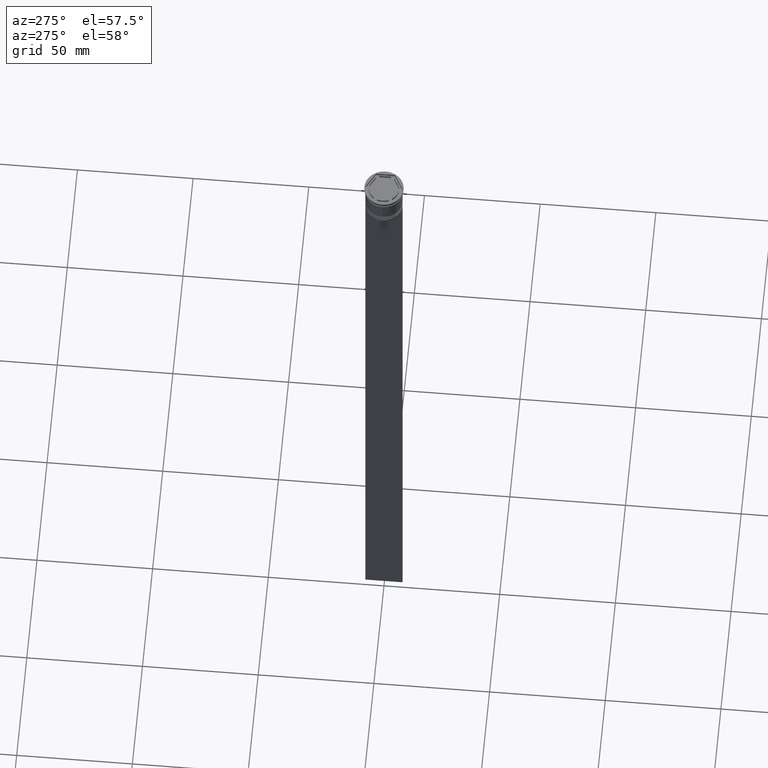
[diagram: clean part render]
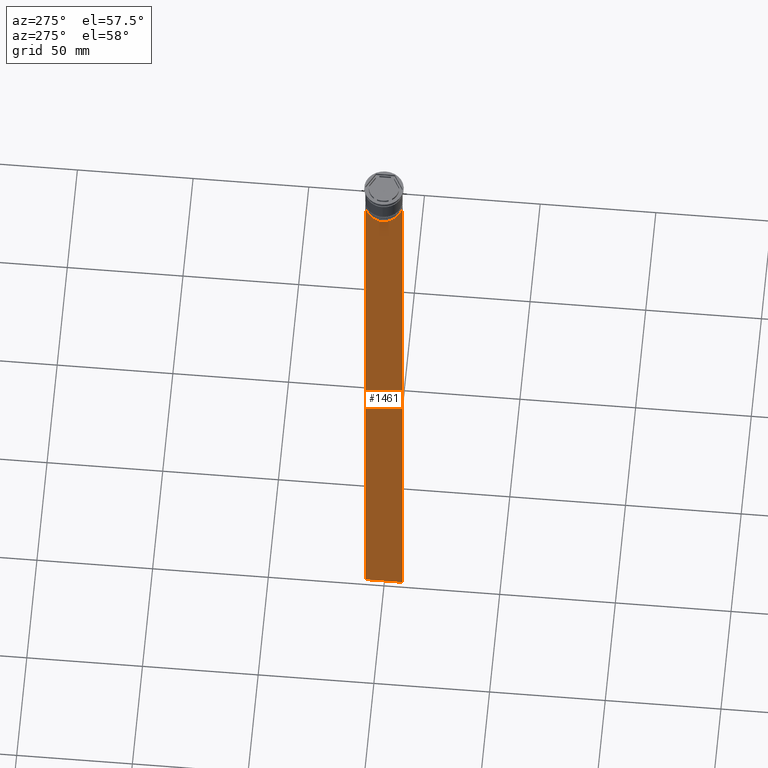
[diagram: same view with one face highlighted and labeled with its STEP entity id]
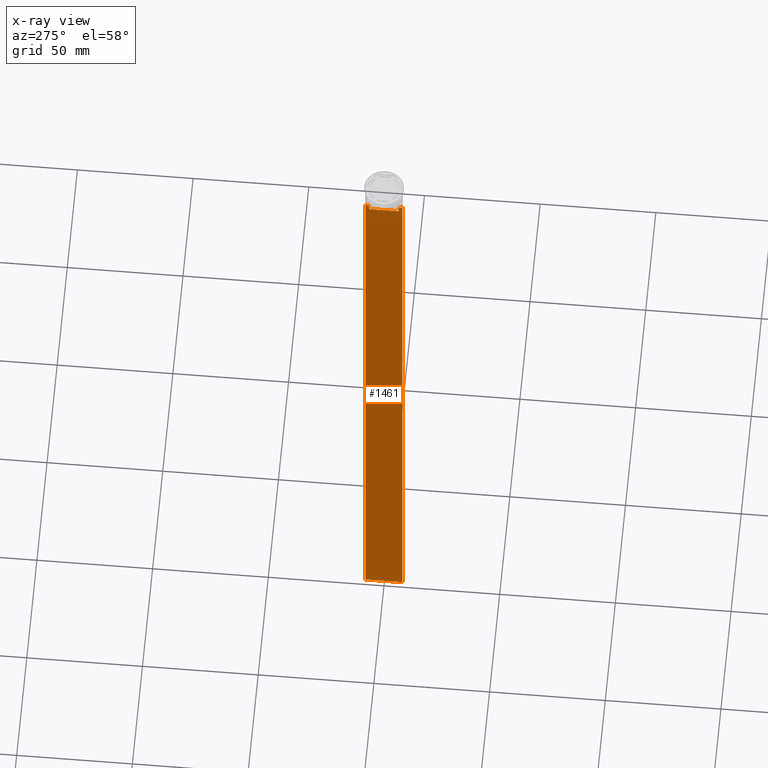
[diagram: x-ray of the same camera — body ghosted, the highlighted face saturated]
A machine part, auxiliary view. The second image highlights one B-rep face of the part: STEP entity #1461.
The next image is the same camera in x-ray: the body ghosted, the highlighted face saturated — about 0% of this face is hidden behind the body in this view.
In plain terms, the highlighted planar face has unit normal (-1, 0, 0).
Its self-contained STEP definition (entity closure, byte-faithful):
#46 = CARTESIAN_POINT ( 'NONE',  ( -0.4999999999999998890, -6.380438856379708312, -14.50000000000000000 ) ) ;
#51 = DIRECTION ( 'NONE',  ( 0.000000000000000000, -1.000000000000000000, 0.000000000000000000 ) ) ;
#116 = CARTESIAN_POINT ( 'NONE',  ( -0.4999999999999998890, 7.999999999999996447, -314.0000000000000000 ) ) ;
#203 = CARTESIAN_POINT ( 'NONE',  ( -0.4999999999999998890, -8.000000000000003553, -314.0000000000000000 ) ) ;
#204 = EDGE_CURVE ( 'NONE', #450, #532, #1127, .T. ) ;
#255 = CARTESIAN_POINT ( 'NONE',  ( -0.4999999999999998890, 6.380438856379708312, -17.00000000000000000 ) ) ;
#276 = CARTESIAN_POINT ( 'NONE',  ( -0.4999999999999998890, 6.380438856379708312, -14.50000000000000000 ) ) ;
#290 = VERTEX_POINT ( 'NONE', #1855 ) ;
#300 = AXIS2_PLACEMENT_3D ( 'NONE', #2396, #444, #2234 ) ;
#322 = LINE ( 'NONE', #1839, #2473 ) ;
#329 = B_SPLINE_CURVE_WITH_KNOTS ( 'NONE', 3,
 ( #1794, #1990, #1437, #276 ),
 .UNSPECIFIED., .F., .F.,
 ( 4, 4 ),
 ( 0.01172465562756038263, 0.01243276816391822651 ),
 .UNSPECIFIED. ) ;
#343 = EDGE_CURVE ( 'NONE', #290, #548, #2342, .T. ) ;
#361 = EDGE_CURVE ( 'NONE', #465, #1235, #1840, .T. ) ;
#375 = CARTESIAN_POINT ( 'NONE',  ( -0.4999999999999998890, -6.380438856379708312, -14.50000000000000000 ) ) ;
#388 = LINE ( 'NONE', #1943, #389 ) ;
#389 = VECTOR ( 'NONE', #2335, 1000.000000000000000 ) ;
#412 = CARTESIAN_POINT ( 'NONE',  ( -0.4999999999999998890, -8.000000000000003553, -314.0000000000000000 ) ) ;
#444 = DIRECTION ( 'NONE',  ( -1.000000000000000000, 0.000000000000000000, 0.000000000000000000 ) ) ;
#450 = VERTEX_POINT ( 'NONE', #2487 ) ;
#465 = VERTEX_POINT ( 'NONE', #813 ) ;
#492 = ORIENTED_EDGE ( 'NONE', *, *, #1773, .F. ) ;
#532 = VERTEX_POINT ( 'NONE', #46 ) ;
#538 = ORIENTED_EDGE ( 'NONE', *, *, #2152, .T. ) ;
#548 = VERTEX_POINT ( 'NONE', #1558 ) ;
#563 = LINE ( 'NONE', #1915, #696 ) ;
#638 = PLANE ( 'NONE',  #300 ) ;
#645 = DIRECTION ( 'NONE',  ( 0.000000000000000000, 0.000000000000000000, -1.000000000000000000 ) ) ;
#667 = ORIENTED_EDGE ( 'NONE', *, *, #343, .F. ) ;
#696 = VECTOR ( 'NONE', #2481, 1000.000000000000000 ) ;
#705 = ORIENTED_EDGE ( 'NONE', *, *, #1254, .F. ) ;
#708 = DIRECTION ( 'NONE',  ( 0.000000000000000000, -1.000000000000000000, 0.000000000000000000 ) ) ;
#739 = CARTESIAN_POINT ( 'NONE',  ( -0.4999999999999998890, -6.881860213634098500, -14.00000000000000178 ) ) ;
#808 = ORIENTED_EDGE ( 'NONE', *, *, #1212, .F. ) ;
#813 = CARTESIAN_POINT ( 'NONE',  ( -0.4999999999999998890, 7.999999999999996447, -14.00000000000000178 ) ) ;
#847 = LINE ( 'NONE', #1987, #1755 ) ;
#850 = CARTESIAN_POINT ( 'NONE',  ( -0.4999999999999998890, -8.000000000000003553, -14.00000000000000178 ) ) ;
#853 = VERTEX_POINT ( 'NONE', #412 ) ;
#865 = VECTOR ( 'NONE', #1546, 1000.000000000000000 ) ;
#915 = VERTEX_POINT ( 'NONE', #980 ) ;
#931 = CARTESIAN_POINT ( 'NONE',  ( -0.4999999999999998890, 7.999999999999996447, 2.031219541881394530 ) ) ;
#980 = CARTESIAN_POINT ( 'NONE',  ( -0.4999999999999998890, 6.881860213634098500, -14.00000000000000178 ) ) ;
#1011 = ORIENTED_EDGE ( 'NONE', *, *, #1531, .F. ) ;
#1127 = LINE ( 'NONE', #1542, #1711 ) ;
#1160 = LINE ( 'NONE', #931, #865 ) ;
#1166 = VERTEX_POINT ( 'NONE', #116 ) ;
#1196 = DIRECTION ( 'NONE',  ( 0.000000000000000000, 1.000000000000000000, 0.000000000000000000 ) ) ;
#1204 = DIRECTION ( 'NONE',  ( 0.000000000000000000, 0.000000000000000000, -1.000000000000000000 ) ) ;
#1205 = ORIENTED_EDGE ( 'NONE', *, *, #2206, .F. ) ;
#1212 = EDGE_CURVE ( 'NONE', #1405, #450, #388, .T. ) ;
#1223 = VECTOR ( 'NONE', #2433, 1000.000000000000000 ) ;
#1235 = VERTEX_POINT ( 'NONE', #2136 ) ;
#1254 = EDGE_CURVE ( 'NONE', #853, #1166, #1732, .T. ) ;
#1278 = VERTEX_POINT ( 'NONE', #1385 ) ;
#1346 = ORIENTED_EDGE ( 'NONE', *, *, #1791, .F. ) ;
#1359 = VECTOR ( 'NONE', #1196, 1000.000000000000000 ) ;
#1385 = CARTESIAN_POINT ( 'NONE',  ( -0.4999999999999998890, -8.000000000000003553, -14.00000000000000178 ) ) ;
#1405 = VERTEX_POINT ( 'NONE', #255 ) ;
#1413 = ORIENTED_EDGE ( 'NONE', *, *, #204, .F. ) ;
#1437 = CARTESIAN_POINT ( 'NONE',  ( -0.4999999999999998890, 6.547597841304911626, -14.33335192459222718 ) ) ;
#1448 = EDGE_CURVE ( 'NONE', #915, #2125, #329, .T. ) ;
#1461 = ADVANCED_FACE ( 'NONE', ( #1635 ), #638, .T. ) ;
#1531 = EDGE_CURVE ( 'NONE', #548, #1278, #322, .T. ) ;
#1542 = CARTESIAN_POINT ( 'NONE',  ( -0.4999999999999998890, -6.380438856379708312, 0.000000000000000000 ) ) ;
#1546 = DIRECTION ( 'NONE',  ( 0.000000000000000000, 0.000000000000000000, -1.000000000000000000 ) ) ;
#1558 = CARTESIAN_POINT ( 'NONE',  ( -0.4999999999999998890, -7.884161337770806632, -14.00000000000000178 ) ) ;
#1577 = B_SPLINE_CURVE_WITH_KNOTS ( 'NONE', 3,
 ( #375, #1723, #2458, #739 ),
 .UNSPECIFIED., .F., .F.,
 ( 4, 4 ),
 ( 0.02996184199614749730, 0.03067452609193703841 ),
 .UNSPECIFIED. ) ;
#1608 = CARTESIAN_POINT ( 'NONE',  ( -0.4999999999999998890, -8.000000000000003553, 2.031219541881394530 ) ) ;
#1635 = FACE_OUTER_BOUND ( 'NONE', #2291, .T. ) ;
#1665 = VECTOR ( 'NONE', #51, 1000.000000000000000 ) ;
#1686 = ORIENTED_EDGE ( 'NONE', *, *, #1448, .F. ) ;
#1711 = VECTOR ( 'NONE', #2295, 1000.000000000000000 ) ;
#1723 = CARTESIAN_POINT ( 'NONE',  ( -0.4999999999999998890, -6.547597841511246131, -14.33335192438652328 ) ) ;
#1732 = LINE ( 'NONE', #203, #1359 ) ;
#1737 = ORIENTED_EDGE ( 'NONE', *, *, #1825, .F. ) ;
#1755 = VECTOR ( 'NONE', #645, 1000.000000000000000 ) ;
#1773 = EDGE_CURVE ( 'NONE', #1235, #915, #563, .T. ) ;
#1790 = CARTESIAN_POINT ( 'NONE',  ( -0.4999999999999998890, -8.000000000000003553, -14.00000000000000178 ) ) ;
#1791 = EDGE_CURVE ( 'NONE', #1278, #853, #2358, .T. ) ;
#1794 = CARTESIAN_POINT ( 'NONE',  ( -0.4999999999999998890, 6.881860213634098500, -14.00000000000000178 ) ) ;
#1825 = EDGE_CURVE ( 'NONE', #2125, #1405, #847, .T. ) ;
#1839 = CARTESIAN_POINT ( 'NONE',  ( -0.4999999999999998890, -8.000000000000003553, -14.00000000000000178 ) ) ;
#1840 = LINE ( 'NONE', #850, #1223 ) ;
#1855 = CARTESIAN_POINT ( 'NONE',  ( -0.4999999999999998890, -6.881860213634098500, -14.00000000000000178 ) ) ;
#1915 = CARTESIAN_POINT ( 'NONE',  ( -0.4999999999999998890, -8.000000000000003553, -14.00000000000000178 ) ) ;
#1943 = CARTESIAN_POINT ( 'NONE',  ( -0.4999999999999998890, 6.399999999999999467, -17.00000000000000000 ) ) ;
#1987 = CARTESIAN_POINT ( 'NONE',  ( -0.4999999999999998890, 6.380438856379708312, 0.000000000000000000 ) ) ;
#1990 = CARTESIAN_POINT ( 'NONE',  ( -0.4999999999999998890, 6.714736947114692711, -14.16668390704818847 ) ) ;
#2089 = CARTESIAN_POINT ( 'NONE',  ( -0.4999999999999998890, 6.380438856379708312, -14.50000000000000000 ) ) ;
#2122 = ORIENTED_EDGE ( 'NONE', *, *, #361, .F. ) ;
#2125 = VERTEX_POINT ( 'NONE', #2089 ) ;
#2136 = CARTESIAN_POINT ( 'NONE',  ( -0.4999999999999998890, 7.884161337770806632, -14.00000000000000178 ) ) ;
#2152 = EDGE_CURVE ( 'NONE', #465, #1166, #1160, .T. ) ;
#2206 = EDGE_CURVE ( 'NONE', #532, #290, #1577, .T. ) ;
#2234 = DIRECTION ( 'NONE',  ( 0.000000000000000000, 0.000000000000000000, 1.000000000000000000 ) ) ;
#2291 = EDGE_LOOP ( 'NONE', ( #1686, #492, #2122, #538, #705, #1346, #1011, #667, #1205, #1413, #808, #1737 ) ) ;
#2295 = DIRECTION ( 'NONE',  ( -0.000000000000000000, -0.000000000000000000, 1.000000000000000000 ) ) ;
#2308 = VECTOR ( 'NONE', #1204, 1000.000000000000000 ) ;
#2335 = DIRECTION ( 'NONE',  ( 0.000000000000000000, -1.000000000000000000, 0.000000000000000000 ) ) ;
#2342 = LINE ( 'NONE', #1790, #1665 ) ;
#2358 = LINE ( 'NONE', #1608, #2308 ) ;
#2396 = CARTESIAN_POINT ( 'NONE',  ( -0.4999999999999998890, -8.000000000000003553, 2.031219541881394530 ) ) ;
#2433 = DIRECTION ( 'NONE',  ( 0.000000000000000000, -1.000000000000000000, 0.000000000000000000 ) ) ;
#2458 = CARTESIAN_POINT ( 'NONE',  ( -0.4999999999999998890, -6.714736947305992132, -14.16668390685738999 ) ) ;
#2473 = VECTOR ( 'NONE', #708, 1000.000000000000000 ) ;
#2481 = DIRECTION ( 'NONE',  ( 0.000000000000000000, -1.000000000000000000, 0.000000000000000000 ) ) ;
#2487 = CARTESIAN_POINT ( 'NONE',  ( -0.4999999999999998890, -6.380438856379708312, -17.00000000000000000 ) ) ;